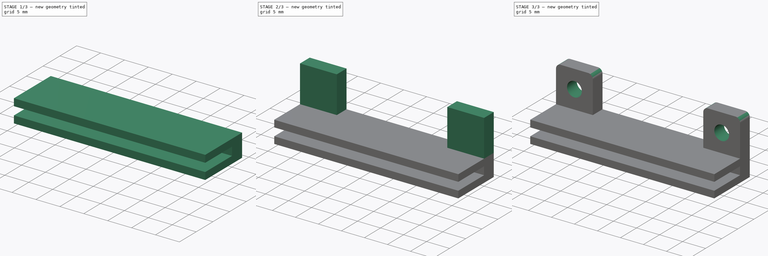
[diagram: build sequence overview — one tinted view per stage of 3, left to right]
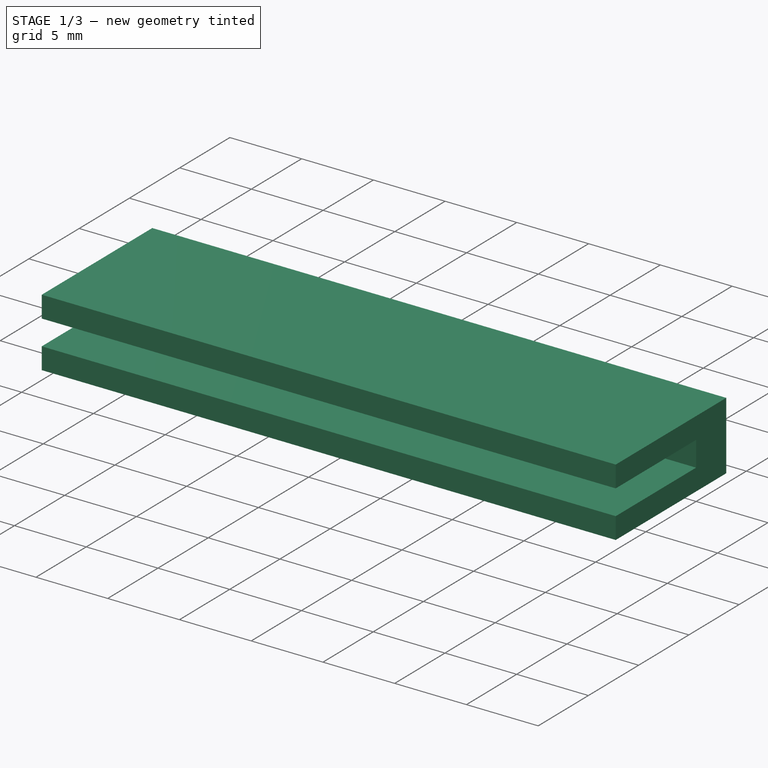
[diagram: stage 1 of 3 — iso view after this stage's code; geometry added in this stage tinted green]
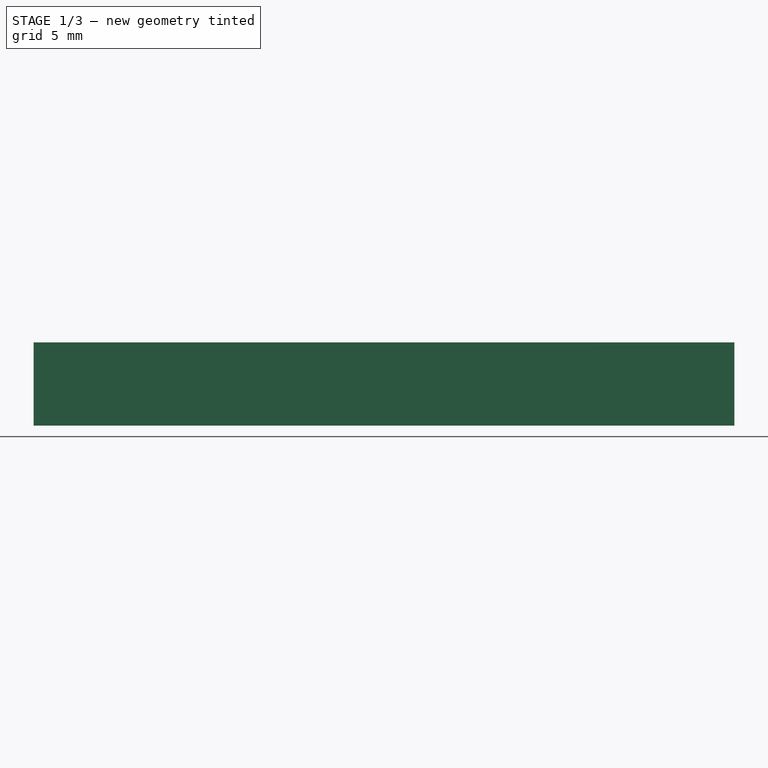
[diagram: stage 1 of 3 — front view after this stage's code; geometry added in this stage tinted green]
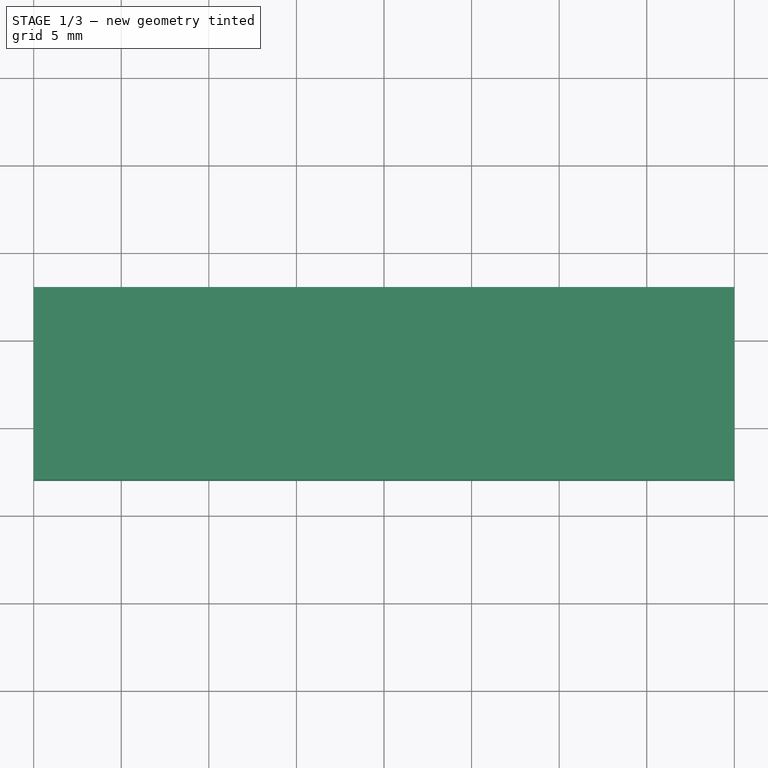
[diagram: stage 1 of 3 — top view after this stage's code; geometry added in this stage tinted green]
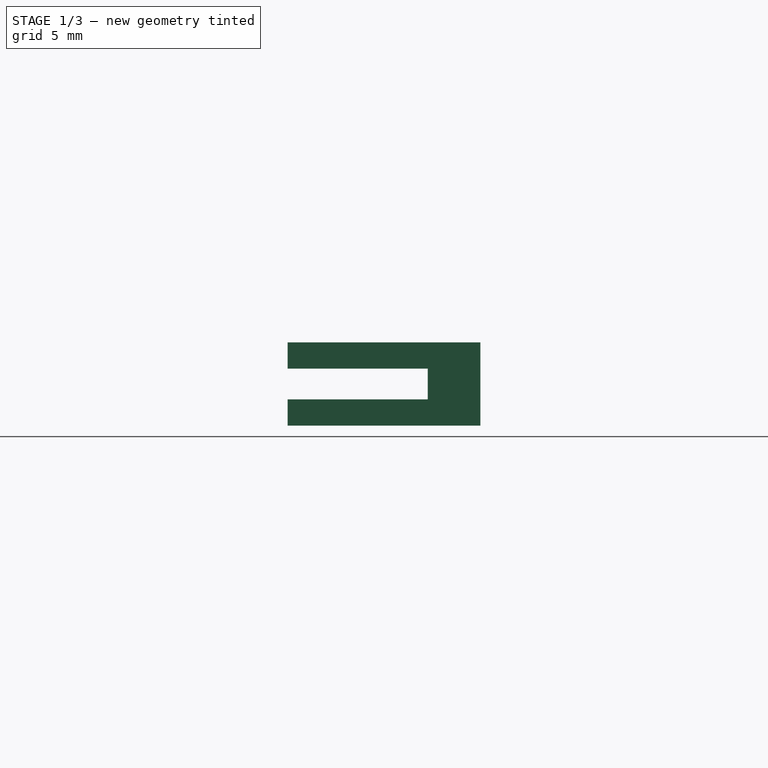
[diagram: stage 1 of 3 — right view after this stage's code; geometry added in this stage tinted green]
FCSTD DOCUMENT  (FreeCAD 0.21R33668 +26 (Git))
Label: KM5GT_Main_Fan_Bracket_v12
License: All rights reserved
LicenseURL: http://en.wikipedia.org/wiki/All_rights_reserved
objects: Sketcher::SketchObject×4, PartDesign::Pad×2, PartDesign::Pocket×2, PartDesign::Fillet×1, PartDesign::Body×1
note: 15 computed .brp shape members not serialized (recipe doc carries the construction recipe); baked Part::Feature solids carry a one-line shape summary decoded from their .brp

FEATURE [Sketcher::SketchObject] Sketch  label="base"
  FullyConstrained = true
  MapMode = 5
  Support = -> [XY_Plane]
  expr: Constraints[11] = .Constraints.baseWidth / 2
  sketch-geometry (4):
    g0: LineSegment StartX=-20 StartY=3 StartZ=0 EndX=20 EndY=3 EndZ=0
    g1: LineSegment StartX=20 StartY=3 StartZ=0 EndX=20 EndY=-8 EndZ=0
    g2: LineSegment StartX=20 StartY=-8 StartZ=0 EndX=-20 EndY=-8 EndZ=0
    g3: LineSegment StartX=-20 StartY=-8 StartZ=0 EndX=-20 EndY=3 EndZ=0
  constraints (12):
    c: Coincident(g0,g1)
    c: Coincident(g1,g2)
    c: Coincident(g2,g3)
    c: Coincident(g3,g0)
    c: Horizontal(g0)
    c: Horizontal(g2)
    c: Vertical(g1)
    c: Vertical(g3)
    c: DistanceX(g0,g0) = 40  'baseWidth'
    c: DistanceY(g1,g1) = 11  'baseDepth'
    c: Distance(g-1,g2) = 8
    c: Distance(g-1,g3) = 20
FEATURE [PartDesign::Pad] Pad  label="basePad"
  Direction = (0,0,1)
  Length = 4.75
  Length2 = 10
  Profile = -> Sketch
  ReferenceAxis = -> Sketch [N_Axis]
  Type = 0
  expr: Length = 1.5 mm + 1.75 mm + 1.5 mm
FEATURE [Sketcher::SketchObject] Sketch001  label="slot"
  ExternalGeometry = -> [Pad]
  FullyConstrained = true
  MapMode = 5
  Placement = pos=(0,-8,0) rot=(1,0,0;1.5708rad)
  Support = -> [Pad]
  expr: Constraints[8] = (.Constraints.baseHeight - .Constraints.slotHeight) / 2
  sketch-geometry (4):
    g0: LineSegment StartX=-20 StartY=3.25 StartZ=0 EndX=20 EndY=3.25 EndZ=0
    g1: LineSegment StartX=20 StartY=3.25 StartZ=0 EndX=20 EndY=1.5 EndZ=0
    g2: LineSegment StartX=20 StartY=1.5 StartZ=0 EndX=-20 EndY=1.5 EndZ=0
    g3: LineSegment StartX=-20 StartY=1.5 StartZ=0 EndX=-20 EndY=3.25 EndZ=0
  constraints (11):
    c: Coincident(g0,g1)
    c: Coincident(g1,g2)
    c: Coincident(g2,g3)
    c: Coincident(g3,g0)
    c: Horizontal(g0)
    c: Horizontal(g2)
    c: DistanceY(g1,g1) = 1.75  'slotHeight'
    c: Distance(g-4,g-5) = 4.75  'baseHeight'
    c: Distance(g-4,g0) = 1.5
    c: Tangent(g1,g-4)
    c: Tangent(g-6,g3)
FEATURE [PartDesign::Pocket] Pocket  label="slotPocket"
  BaseFeature = -> Pad
  Direction = (0,1,-2e-16)
  Length = 8
  Length2 = 5
  Profile = -> Sketch001
  ReferenceAxis = -> Sketch001 [N_Axis]
  Type = 0
  expr: Length = <<base>>.Constraints.baseDepth - 3 mm
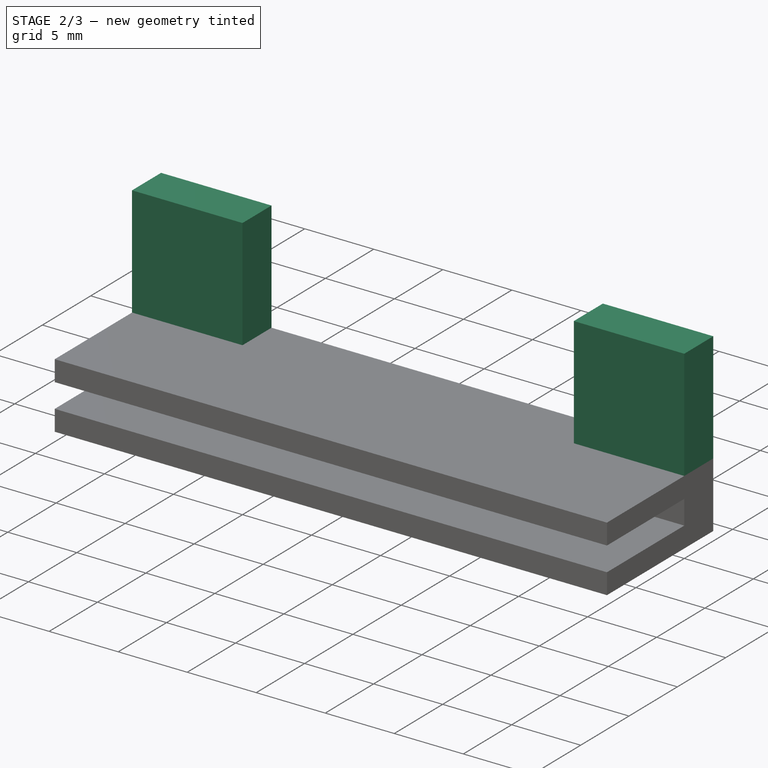
[diagram: stage 2 of 3 — iso view after this stage's code; geometry added in this stage tinted green]
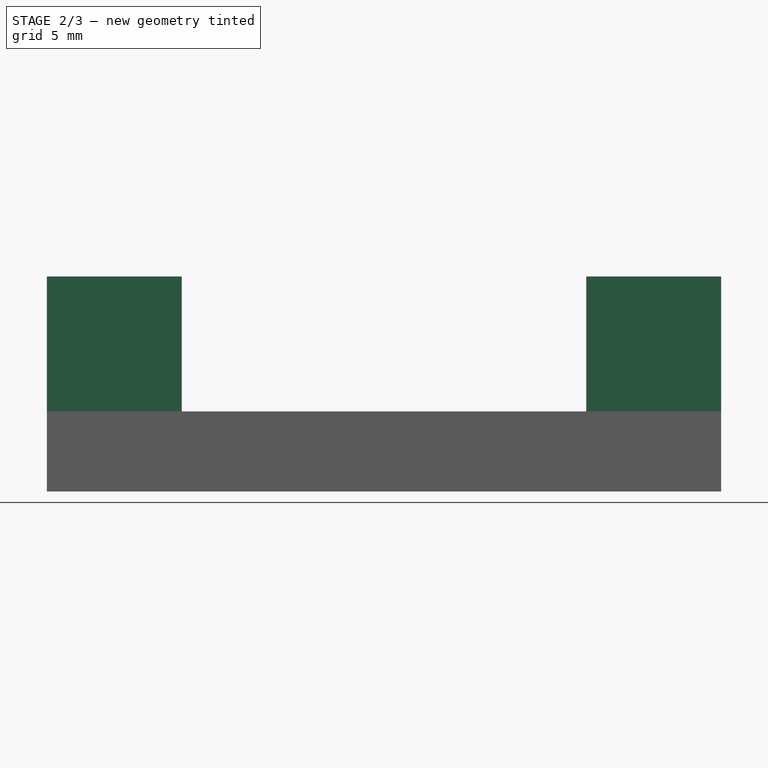
[diagram: stage 2 of 3 — front view after this stage's code; geometry added in this stage tinted green]
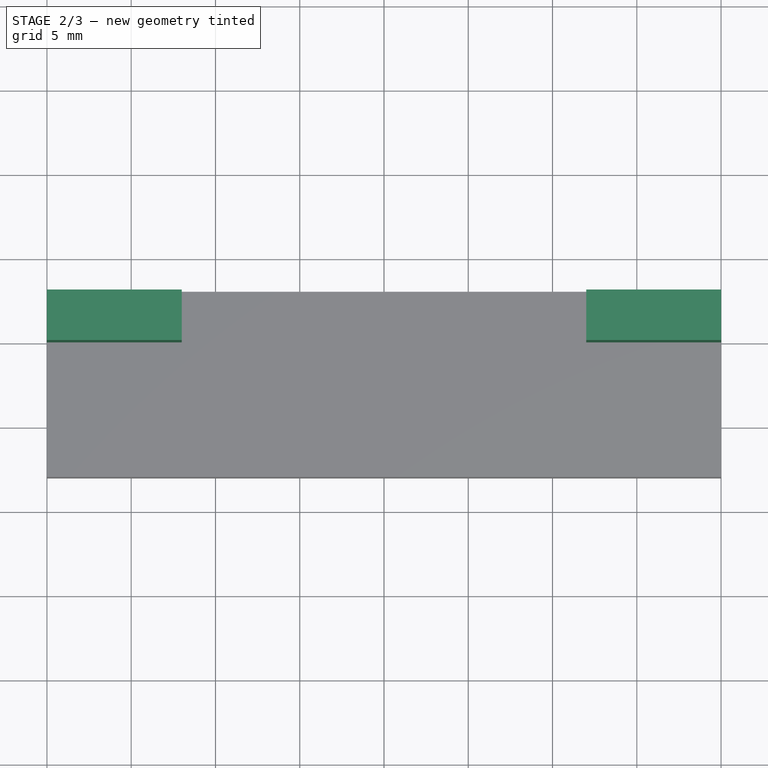
[diagram: stage 2 of 3 — top view after this stage's code; geometry added in this stage tinted green]
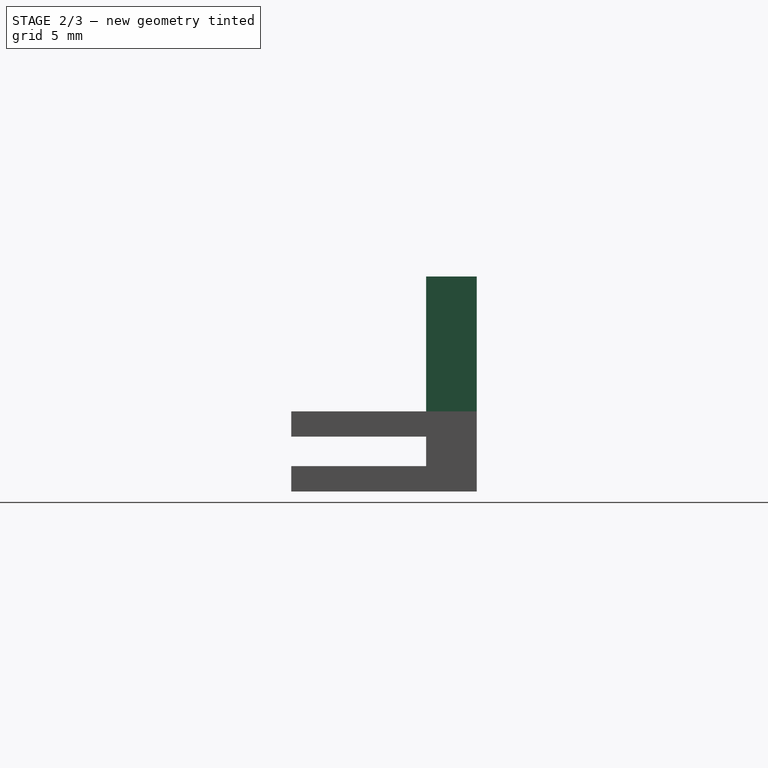
[diagram: stage 2 of 3 — right view after this stage's code; geometry added in this stage tinted green]
FEATURE [Sketcher::SketchObject] Sketch002  label="fanBrackets"
  ExternalGeometry = -> [Pocket]
  FullyConstrained = true
  MapMode = 5
  Placement = pos=(0,0,4.75) rot=(0,0,1;0rad)
  Support = -> [Pocket]
  expr: Constraints[19] = .Constraints.bracketWidth
  sketch-geometry (8):
    g0: LineSegment StartX=-20 StartY=3 StartZ=0 EndX=-12 EndY=3 EndZ=0
    g1: LineSegment StartX=-12 StartY=3 StartZ=0 EndX=-12 EndY=0 EndZ=0
    g2: LineSegment StartX=-12 StartY=0 StartZ=0 EndX=-20 EndY=0 EndZ=0
    g3: LineSegment StartX=-20 StartY=0 StartZ=0 EndX=-20 EndY=3 EndZ=0
    g4: LineSegment StartX=12 StartY=3 StartZ=0 EndX=20 EndY=3 EndZ=0
    g5: LineSegment StartX=20 StartY=3 StartZ=0 EndX=20 EndY=0 EndZ=0
    g6: LineSegment StartX=20 StartY=0 StartZ=0 EndX=12 EndY=0 EndZ=0
    g7: LineSegment StartX=12 StartY=0 StartZ=0 EndX=12 EndY=3 EndZ=0
  constraints (20):
    c: Coincident(g0,g1)
    c: Coincident(g1,g2)
    c: Coincident(g2,g3)
    c: Coincident(g3,g0)
    c: Horizontal(g2)
    c: Vertical(g1)
    c: PointOnObject(g1,g-1)
    c: Coincident(g4,g5)
    c: Coincident(g5,g6)
    c: Coincident(g6,g7)
    c: Coincident(g7,g4)
    c: Horizontal(g6)
    c: Vertical(g7)
    c: PointOnObject(g5,g-1)
    c: Tangent(g3,g-3)
    c: Tangent(g0,g-4)
    c: DistanceX(g0,g0) = 8  'bracketWidth'
    c: Tangent(g4,g-4)
    c: Tangent(g5,g-5)
    c: DistanceX(g4,g4) = 8
FEATURE [PartDesign::Pad] Pad001  label="fanBracketPads"
  BaseFeature = -> Pocket
  Direction = (0,0,1)
  Length = 8
  Length2 = 10
  Profile = -> Sketch002
  ReferenceAxis = -> Sketch002 [N_Axis]
  Type = 0
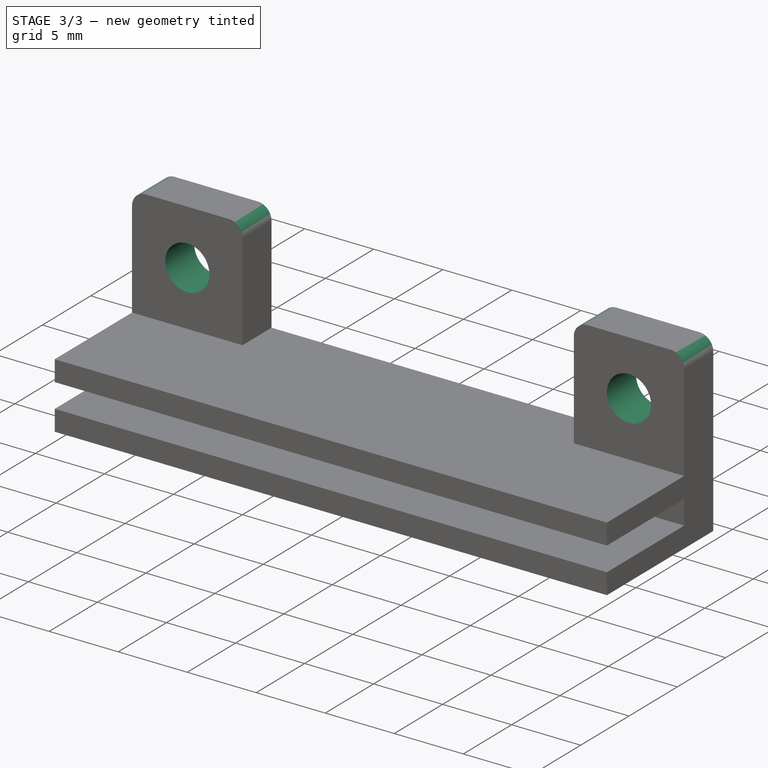
[diagram: stage 3 of 3 — iso view after this stage's code; geometry added in this stage tinted green]
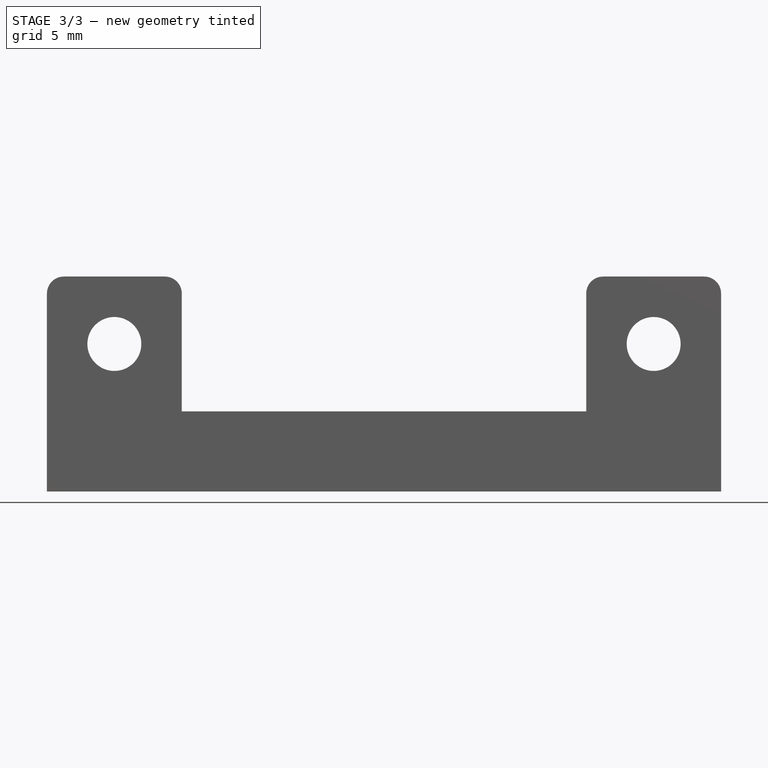
[diagram: stage 3 of 3 — front view after this stage's code; geometry added in this stage tinted green]
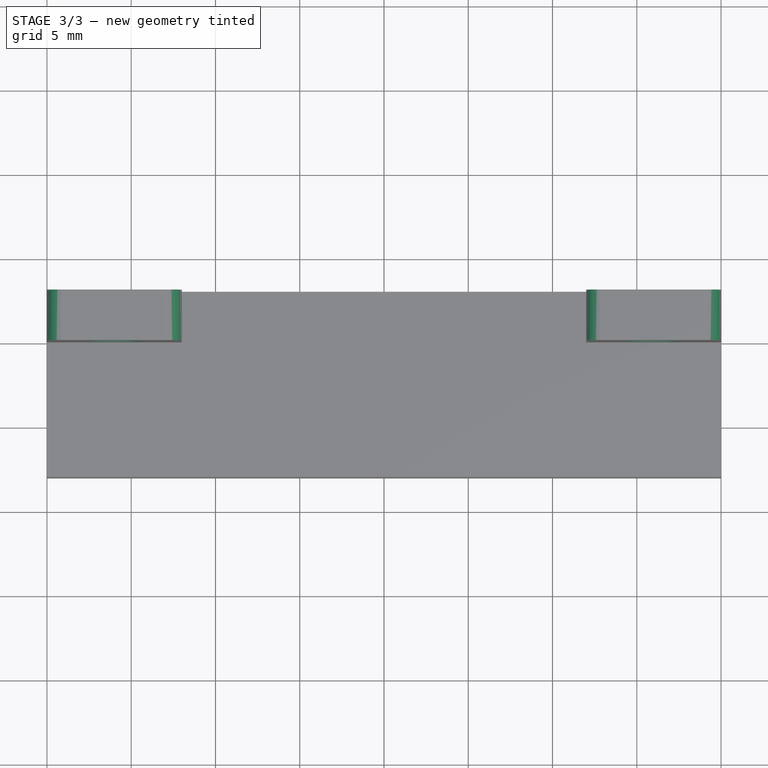
[diagram: stage 3 of 3 — top view after this stage's code; geometry added in this stage tinted green]
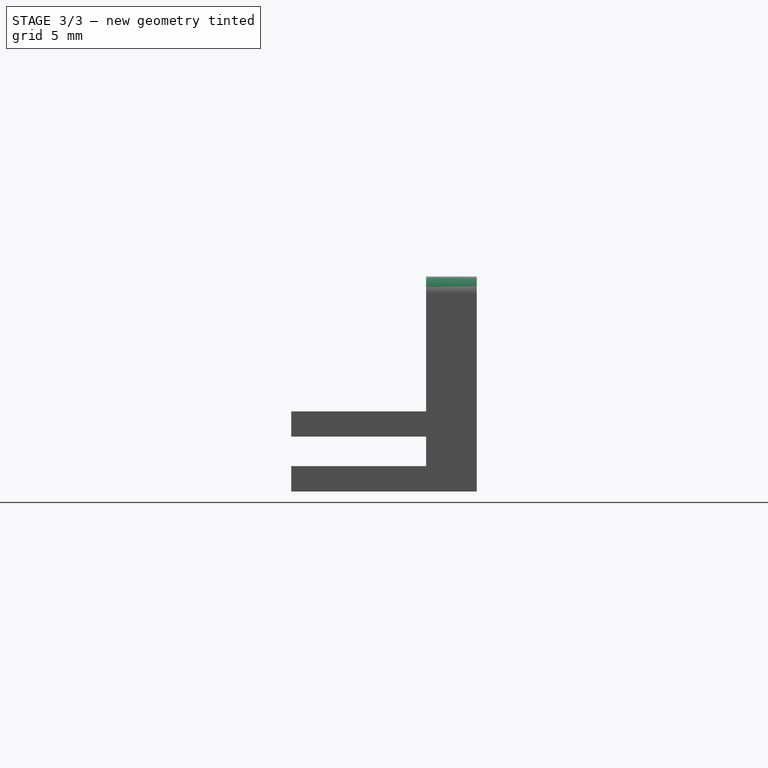
[diagram: stage 3 of 3 — right view after this stage's code; geometry added in this stage tinted green]
FEATURE [Sketcher::SketchObject] Sketch004  label="mountingHoles"
  ExternalGeometry = -> [Pad001]
  FullyConstrained = true
  MapMode = 5
  Placement = pos=(0,3,0) rot=(0,0.707107,0.707107;3.14159rad)
  Support = -> [Pad001]
  expr: Constraints[2] = .Constraints.bracketWidth / 2
  expr: Constraints[3] = .Constraints.bracketHeight / 2
  expr: Constraints[5] = .Constraints.bracketHeight / 2
  expr: Constraints[6] = .Constraints.bracketWidth / 2
  sketch-geometry (2):
    g0: Circle CenterX=-16 CenterY=8.75 CenterZ=0 NormalX=0 NormalY=0 NormalZ=1 AngleXU=0 Radius=1.6
    g1: Circle CenterX=16 CenterY=8.75 CenterZ=0 NormalX=0 NormalY=0 NormalZ=1 AngleXU=0 Radius=1.6
  constraints (8):
    c: Distance(g-4,g-5) = 8  'bracketHeight'
    c: Distance(g-4,g-6) = 8  'bracketWidth'
    c: Distance(g0,g-4) = 4
    c: Distance(g0,g-5) = 4
    c: Diameter(g0) = 3.2  'holeDiameter'
    c: Distance(g1,g-10) = 4
    c: Distance(g1,g-7) = 4
    c: Equal(g1,g0)
FEATURE [PartDesign::Pocket] Pocket001  label="mountingHolesPocket"
  BaseFeature = -> Pad001
  Direction = (0,-1,2e-16)
  Length = 5
  Length2 = 5
  Profile = -> Sketch004
  ReferenceAxis = -> Sketch004 [N_Axis]
  Type = 1
FEATURE [PartDesign::Fillet] Fillet  label="fanBracketFilets"
  Base = -> Pocket001 [Edge44,Edge51,Edge45,Edge38]
  BaseFeature = -> Pocket001
  Radius = 1
  SupportTransform = false
  UseAllEdges = false
FEATURE [PartDesign::Body] Body
  Group = -> [Sketch,Pad,Sketch001,Pocket,Sketch002,Pad001,Sketch004,Pocket001,Fillet]
  Origin = -> Origin
  Tip = -> Fillet
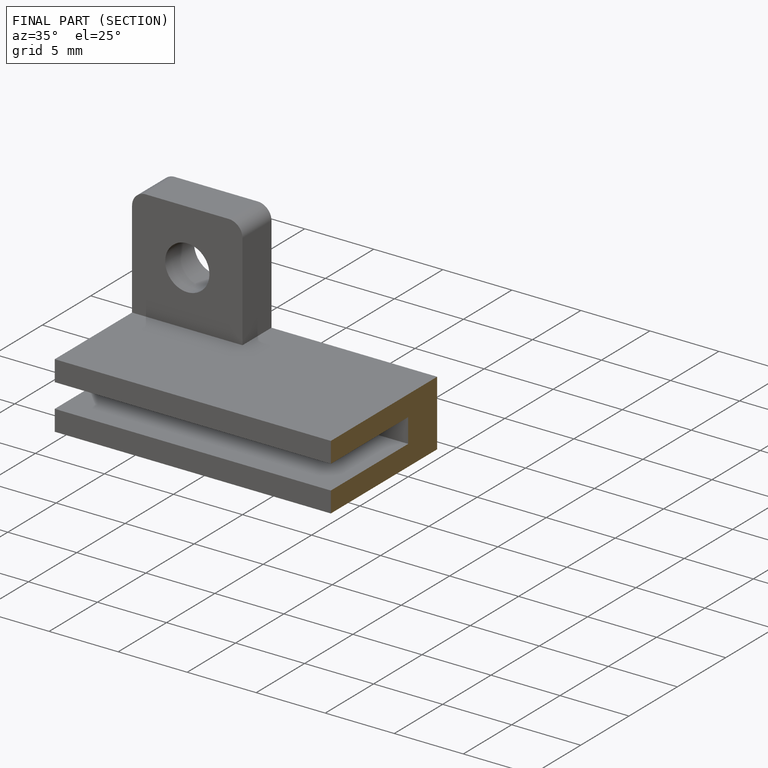
[diagram: finished part — half-section view (interior)]
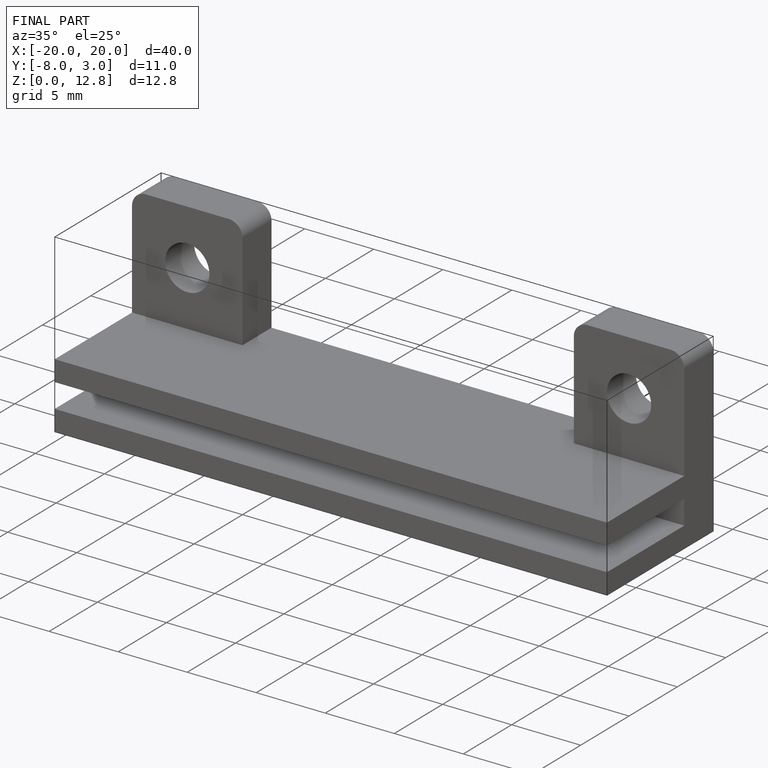
[diagram: finished part — iso view with bounding-box wireframe]
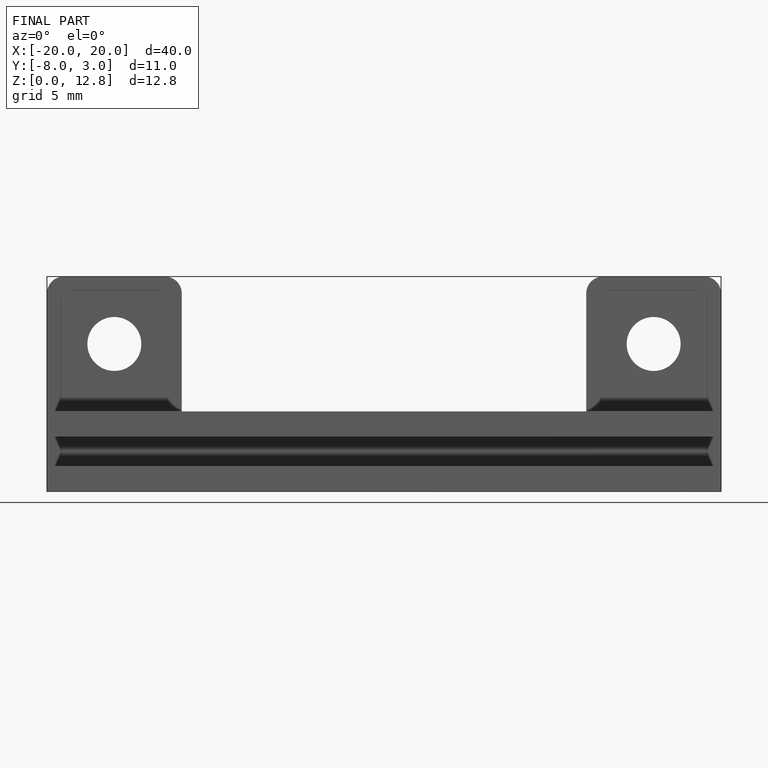
[diagram: finished part — front view with bounding-box wireframe]
